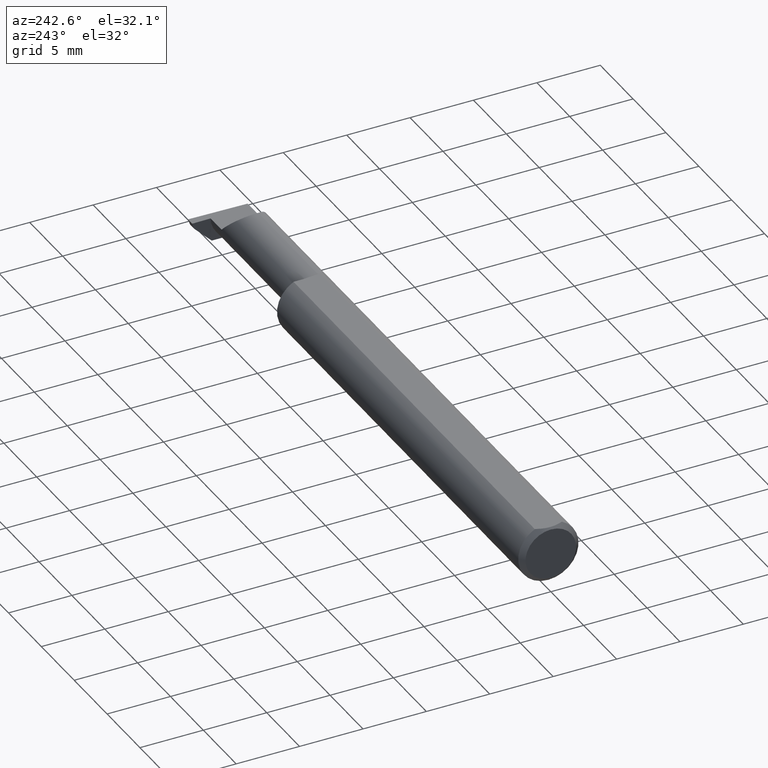
[diagram: clean part render]
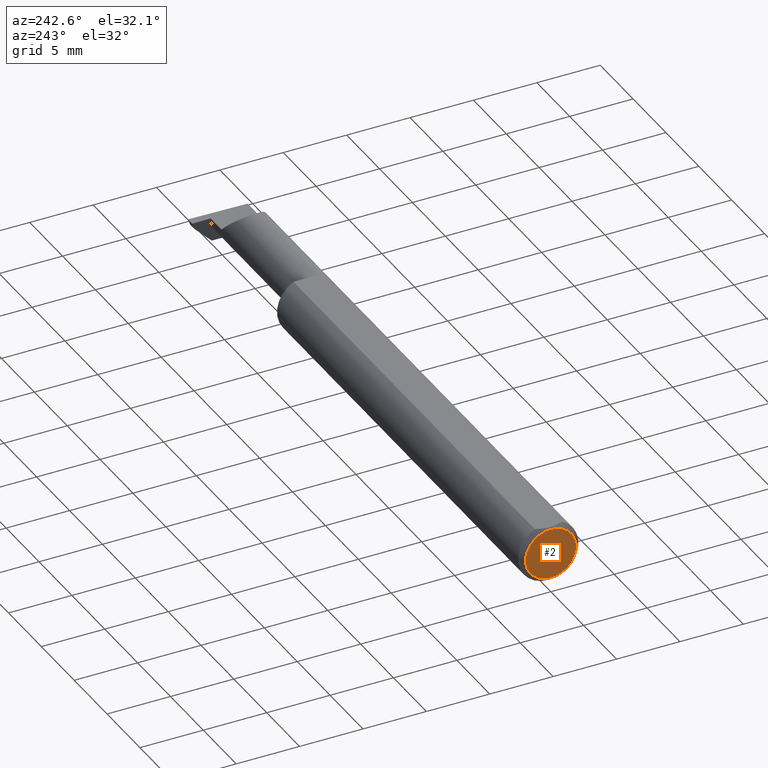
[diagram: same view with one face highlighted and labeled with its STEP entity id]
A machine part, auxiliary view. The second image highlights one B-rep face of the part: STEP entity #2.
In plain terms, the highlighted planar face has unit normal (1, 0, 0).
Its self-contained STEP definition (entity closure, byte-faithful):
#2 = ADVANCED_FACE ( 'NONE', ( #608 ), #625, .F. ) ;
#53 = ORIENTED_EDGE ( 'NONE', *, *, #166, .T. ) ;
#132 = DIRECTION ( 'NONE',  ( -1.000000000000000000, -0.000000000000000000, -0.000000000000000000 ) ) ;
#139 = DIRECTION ( 'NONE',  ( 0.000000000000000000, 0.000000000000000000, -1.000000000000000000 ) ) ;
#148 = CIRCLE ( 'NONE', #187, 0.07860000000000001708 ) ;
#166 = EDGE_CURVE ( 'NONE', #723, #359, #148, .T. ) ;
#187 = AXIS2_PLACEMENT_3D ( 'NONE', #212, #338, #575 ) ;
#212 = CARTESIAN_POINT ( 'NONE',  ( 0.000000000000000000, 0.000000000000000000, 0.000000000000000000 ) ) ;
#239 = AXIS2_PLACEMENT_3D ( 'NONE', #315, #132, #435 ) ;
#242 = EDGE_LOOP ( 'NONE', ( #752, #53 ) ) ;
#246 = DIRECTION ( 'NONE',  ( 1.000000000000000000, 0.000000000000000000, 0.000000000000000000 ) ) ;
#315 = CARTESIAN_POINT ( 'NONE',  ( 0.000000000000000000, 0.000000000000000000, 0.000000000000000000 ) ) ;
#338 = DIRECTION ( 'NONE',  ( -1.000000000000000000, -0.000000000000000000, -0.000000000000000000 ) ) ;
#359 = VERTEX_POINT ( 'NONE', #379 ) ;
#367 = EDGE_CURVE ( 'NONE', #359, #723, #677, .T. ) ;
#379 = CARTESIAN_POINT ( 'NONE',  ( 0.000000000000000000, 0.000000000000000000, -0.07860000000000001708 ) ) ;
#435 = DIRECTION ( 'NONE',  ( 0.000000000000000000, 0.000000000000000000, 1.000000000000000000 ) ) ;
#443 = CARTESIAN_POINT ( 'NONE',  ( 0.000000000000000000, 0.000000000000000000, 0.000000000000000000 ) ) ;
#525 = CARTESIAN_POINT ( 'NONE',  ( 0.000000000000000000, 1.054420894065871180E-17, 0.07860000000000001708 ) ) ;
#542 = AXIS2_PLACEMENT_3D ( 'NONE', #443, #246, #139 ) ;
#575 = DIRECTION ( 'NONE',  ( 0.000000000000000000, 0.000000000000000000, 1.000000000000000000 ) ) ;
#608 = FACE_OUTER_BOUND ( 'NONE', #242, .T. ) ;
#625 = PLANE ( 'NONE',  #542 ) ;
#677 = CIRCLE ( 'NONE', #239, 0.07860000000000001708 ) ;
#723 = VERTEX_POINT ( 'NONE', #525 ) ;
#752 = ORIENTED_EDGE ( 'NONE', *, *, #367, .T. ) ;